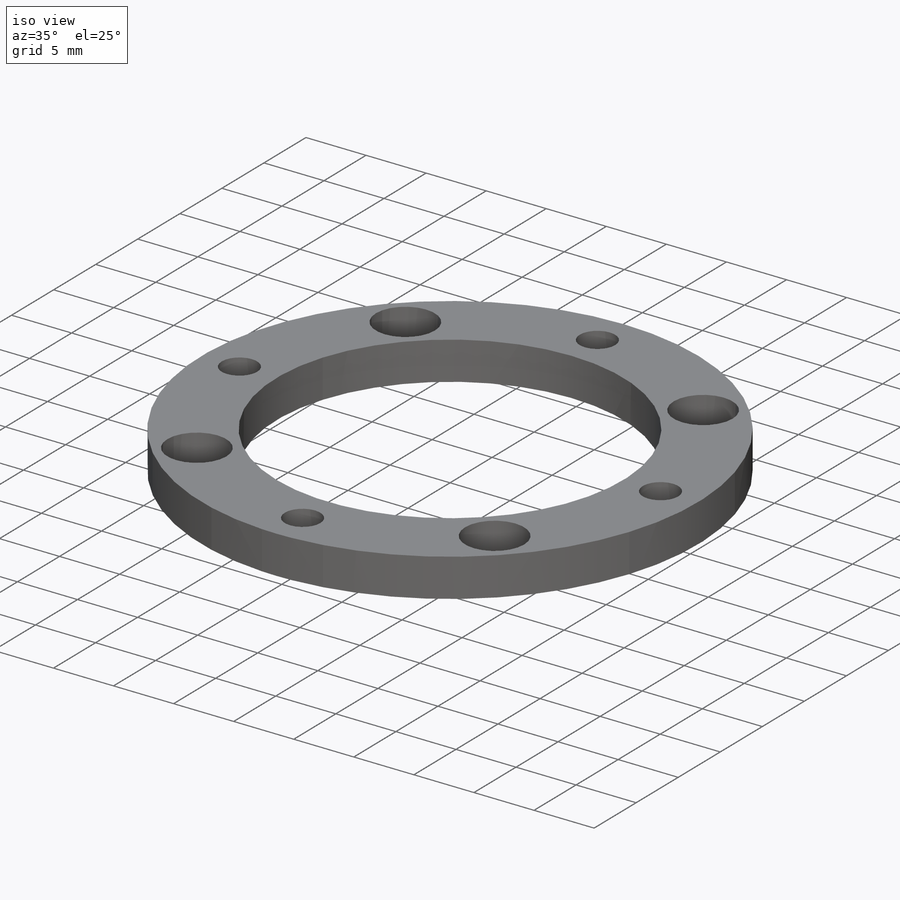
[diagram: iso view]
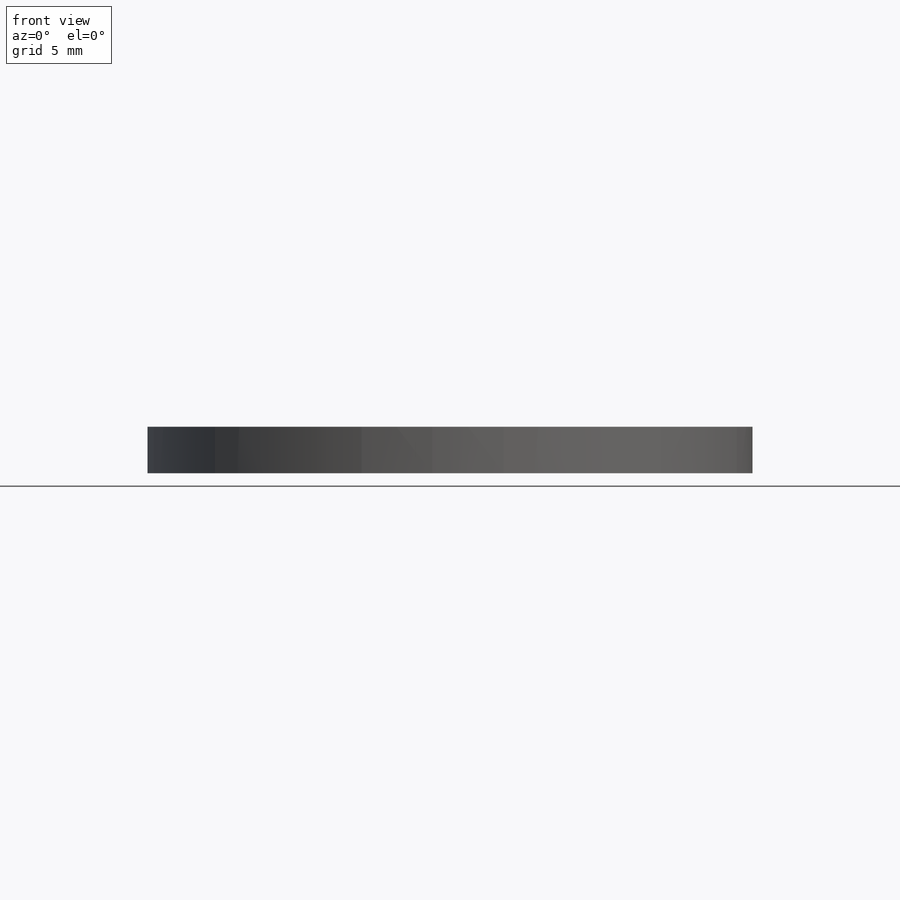
[diagram: front view]
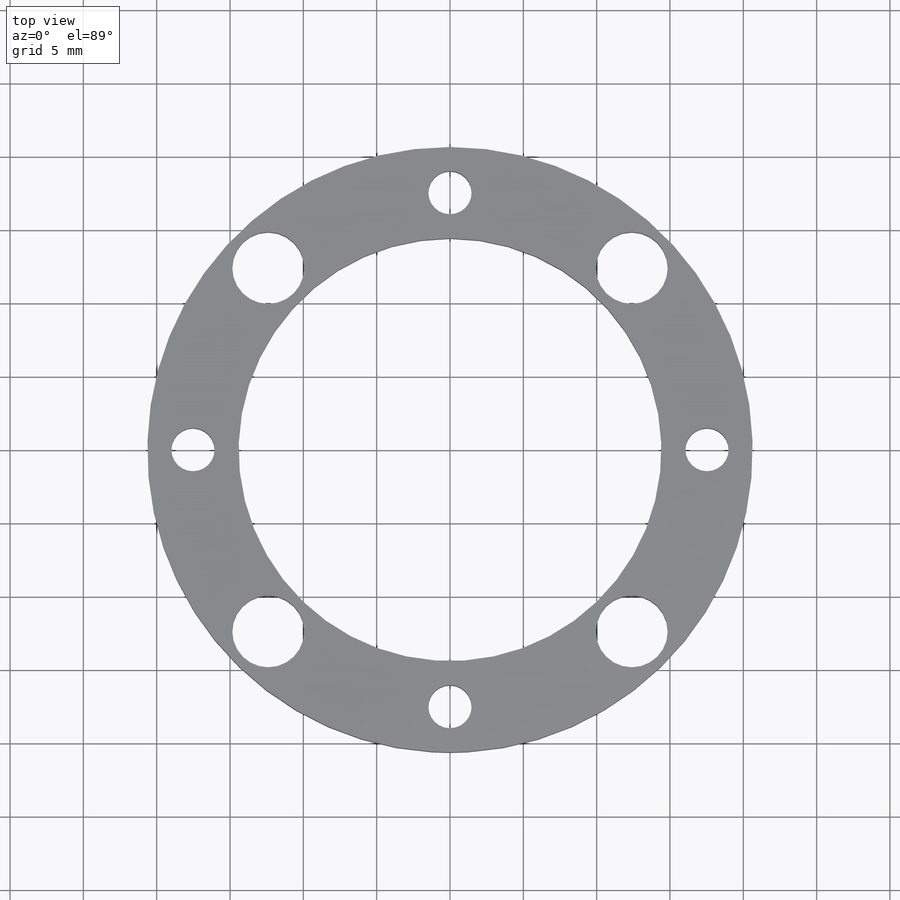
[diagram: top view]
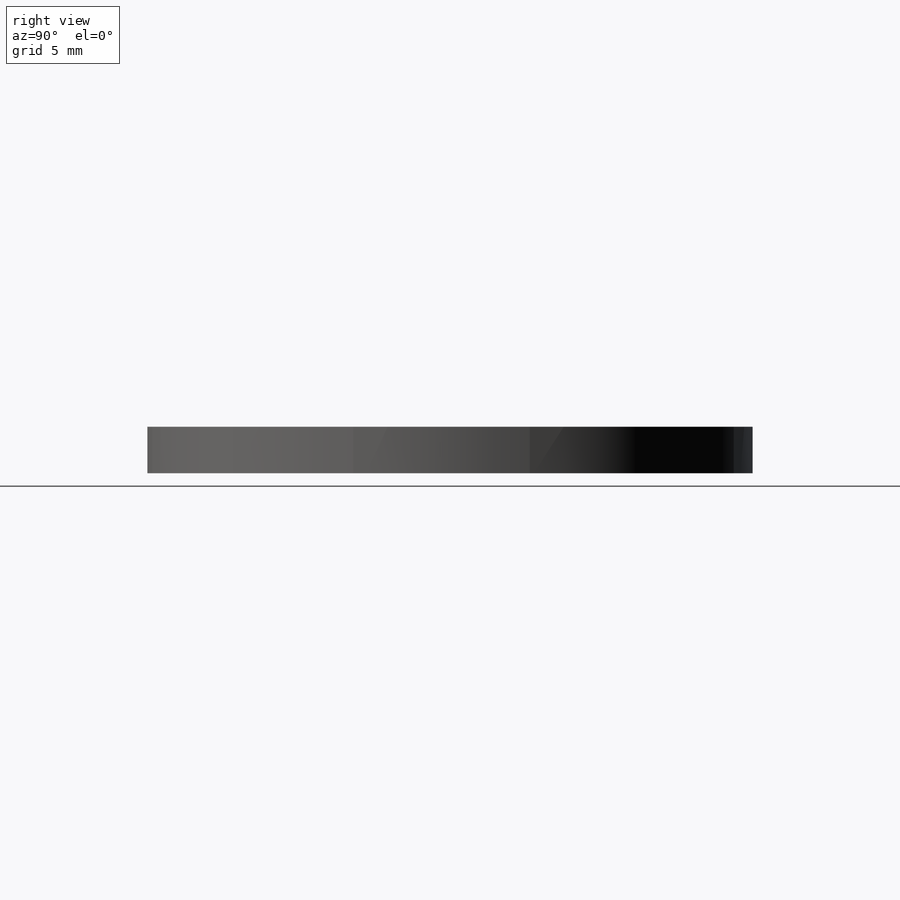
[diagram: right view]
SOLIDWORKS PART (.sldprt)
format: sldprt  version: not decoded by parser v0  size: 325,120 bytes
history: native  units: mm
features: sketch x4, cut_extrude x3, material x1, extrude x1 (+13 scaffold rows collapsed)
feature tree (22):
  scaffold x13  (default folders/planes/origin — collapsed)
  material  "Material <not specified>"
  sketch  "Profile Sketch"  dims[D1=28.829mm D2=35.052mm D3=41.275mm D4=35.052mm]
  extrude  "Profile Extrude"  Depth=3.175mm
  sketch  "Bore Sketch"  dims[D1=28.829mm]
  cut_extrude  "Bore Cut"  [1 undecoded]
  sketch  "Bolt Clearance Sketch"  dims[D2=2.9464mm D1=17.526mm D3=4.0]
  cut_extrude  "Bolt Clearance Cut"  [1 undecoded]
  sketch  "Bolt Head Clearance Sketch"  dims[c1.D1=4.9022mm c1.D2=17.526mm c1.D3=~10.088016mm c2.D3=45.0deg c2.D4=4.0]
  cut_extrude  "Bolt Head Clearance Cut"  [1 undecoded]
decode coverage: 5 of 8 modeling features carry decoded parameters
note: ~ marks probable driven/reference dimensions
note: 3 parameter values undecoded
summary: no parameter record found for 3 features
note: suppression state not decoded; provenance and decode notes live in map.json
